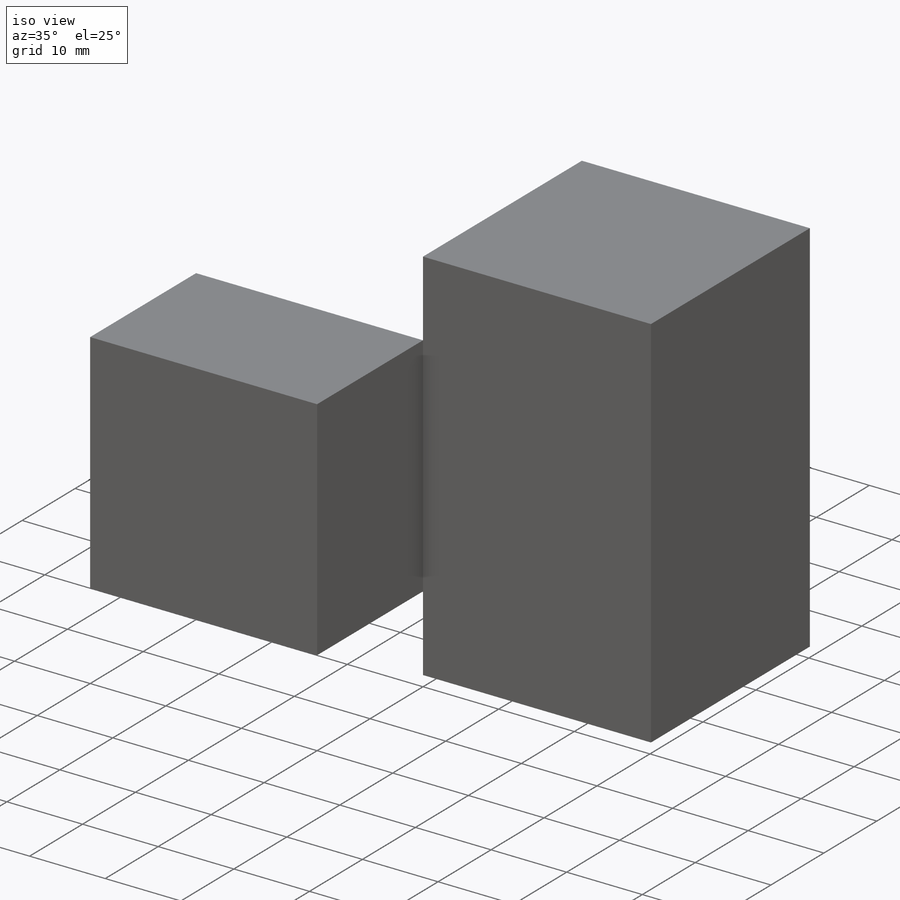
[diagram: iso view]
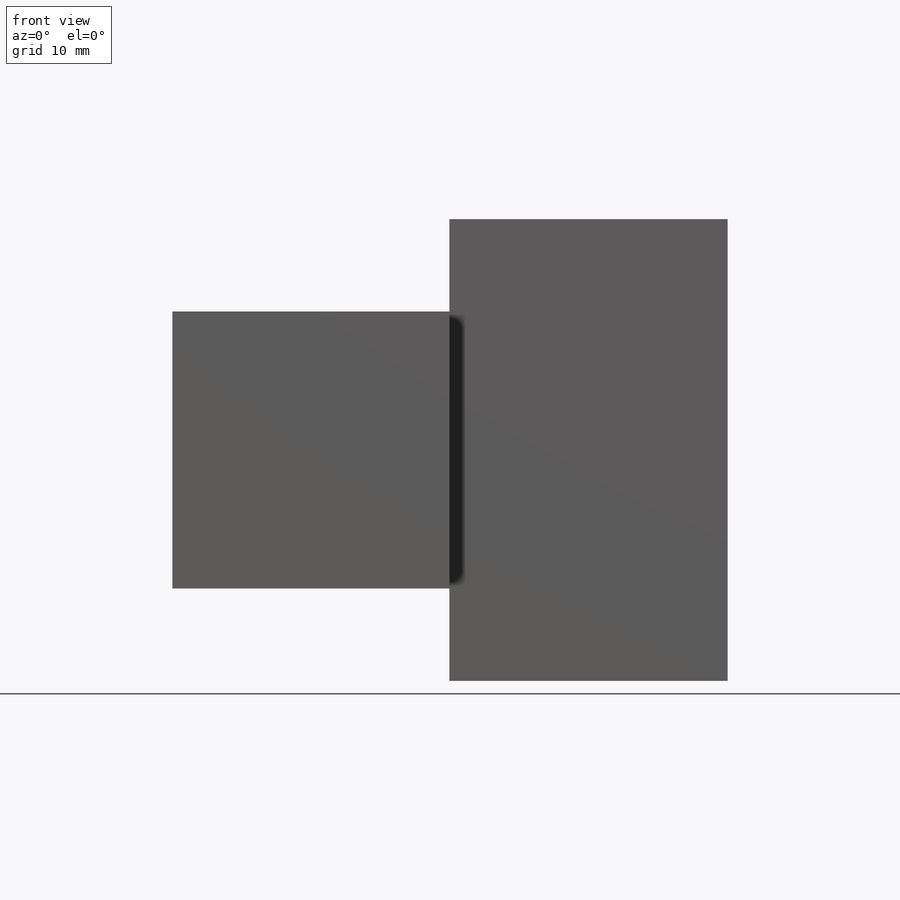
[diagram: front view]
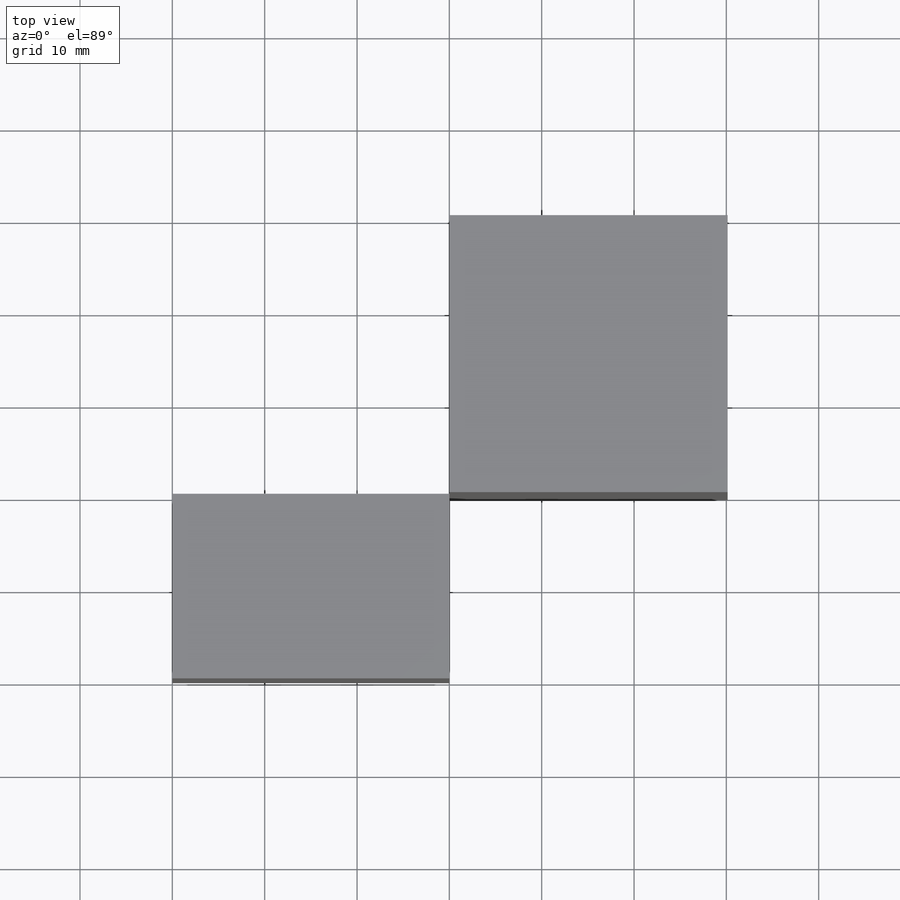
[diagram: top view]
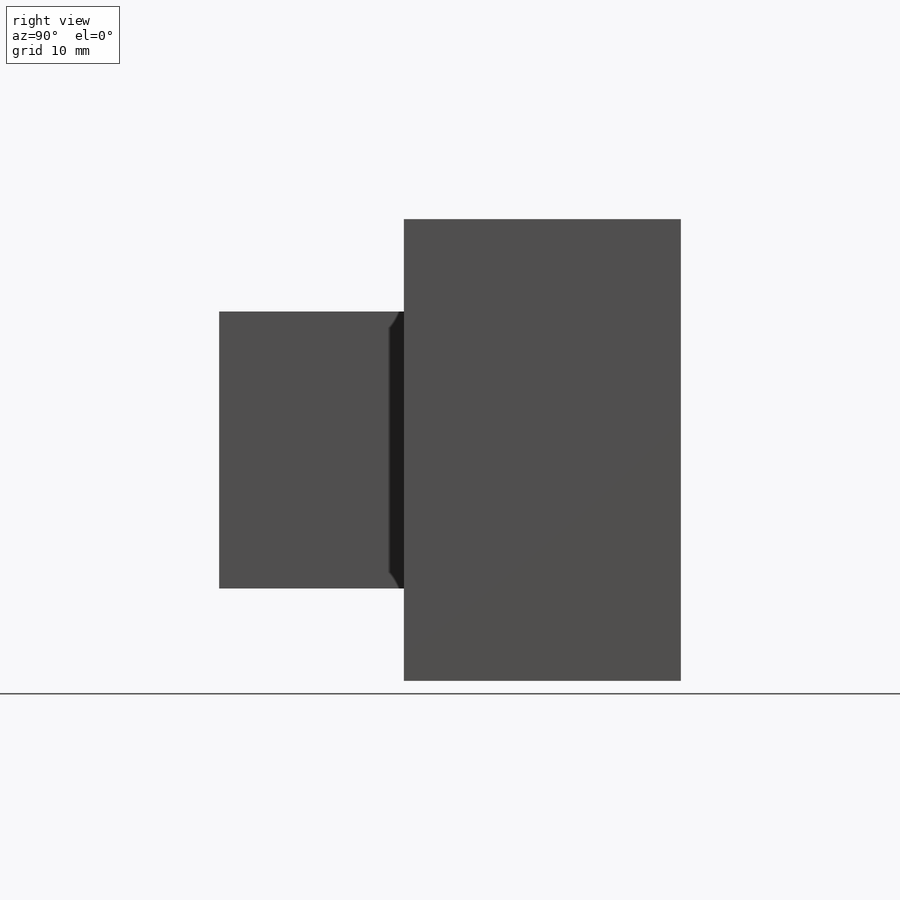
[diagram: right view]
SOLIDWORKS PART (.sldprt)
format: sldprt  version: not decoded by parser v0  size: 217,088 bytes
history: native  units: mm
features: sketch x8, cut_extrude x6, extrude x2, plane x2, material x1 (+13 scaffold rows collapsed)
feature tree (32):
  scaffold x13  (default folders/planes/origin — collapsed)
  material  "Material <not specified>"
  sketch  "Sketch1"  dims[c1.D1=~88.294111mm c1.D2=~145.141004mm c2.D1=60.0mm c2.D2=50.0mm]
  extrude  "Boss-Extrude1"  Depth=50mm
  sketch  "Sketch2"  dims[c1.D1=~13.578356mm c1.D2=~22.636424mm c2.D1=~11.917528mm c2.D2=~22.636424mm c3.D1=30.0mm c3.D2=30.0mm c3.D3=10.0mm c3.D4=10.0mm]
  cut_extrude  "Cut-Extrude1"  Depth=50mm
  sketch  "Sketch3"  dims[c1.D1=10.0mm c1.D2=~20.154069mm c2.D1=10.0mm c2.D2=~20.154069mm c3.D1=20.0mm c3.D2=20.0mm]
  cut_extrude  "Cut-Extrude2"  Depth=50mm
  sketch  "Sketch4"  dims[c1.D1=30.0mm c1.D2=30.0mm c2.D1=20.0mm c2.D2=30.0mm]
  cut_extrude  "Cut-Extrude3"  Depth=50mm
  plane  "Plane2"  Offset=40mm
  plane  "Plane3"  Offset=15mm
  sketch  "Sketch9"  dims[D1=29.999mm D2=9.999mm]
  cut_extrude  "Cut-Extrude7"  Depth=30mm
  sketch  "Sketch10"  dims[D1=29.999mm D2=19.999mm D3=0.0001mm]
  cut_extrude  "Cut-Extrude8"  Depth=30mm
  sketch  "Sketch12"  dims[D1=~30.264158mm]
  cut_extrude  "Cut-Extrude10"  Depth=0.0001mm
  sketch  "Sketch14"  dims[D1=50.0mm D2=30.0mm]
  extrude  "Boss-Extrude15"  Depth=0.14mm
decode coverage: 16 of 16 modeling features carry decoded parameters
note: ~ marks probable driven/reference dimensions
note: suppression state not decoded; provenance and decode notes live in map.json
